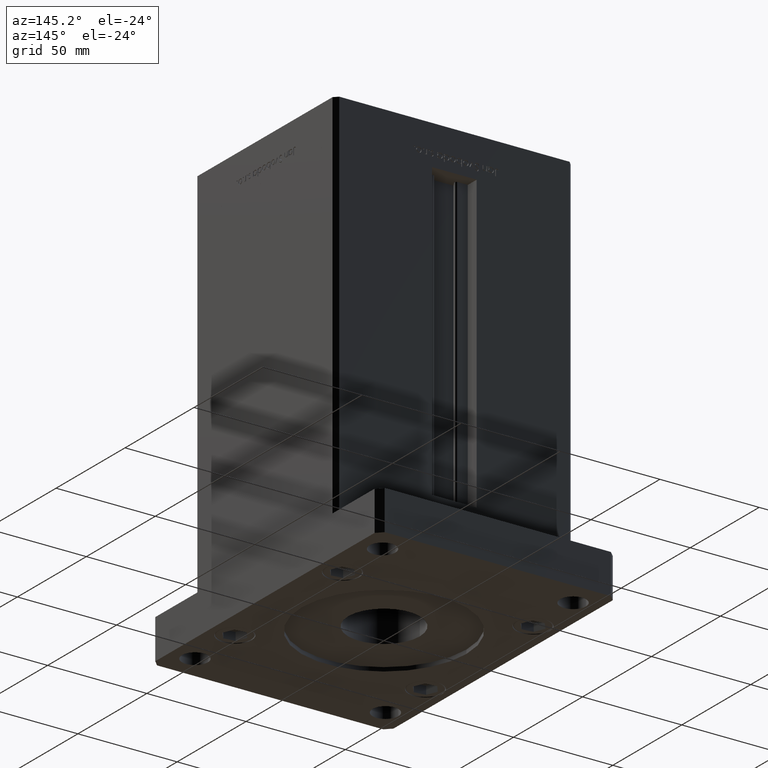
[diagram: clean part render]
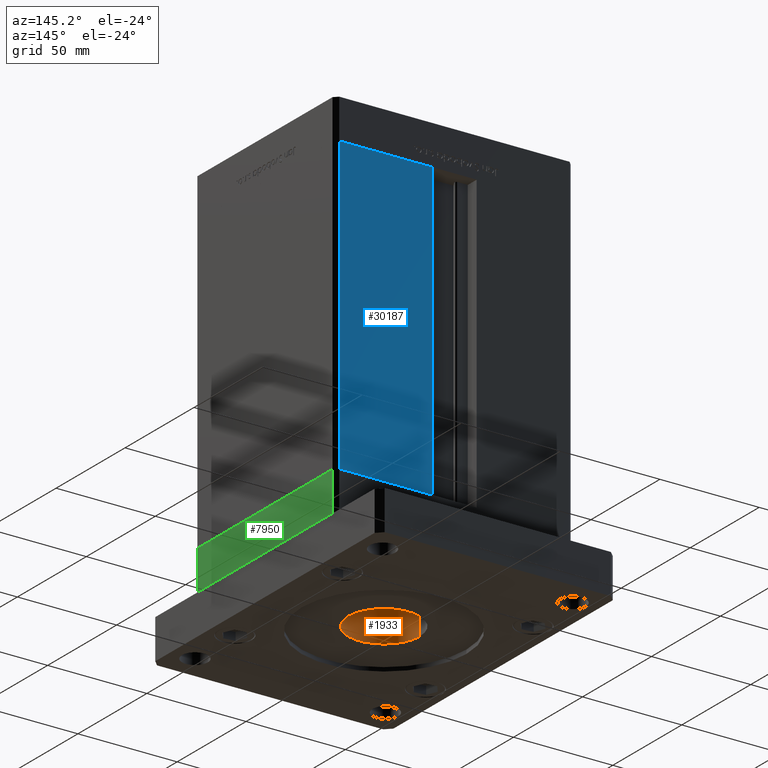
[diagram: same view with three faces highlighted in distinct colors, each labeled with its STEP entity id]
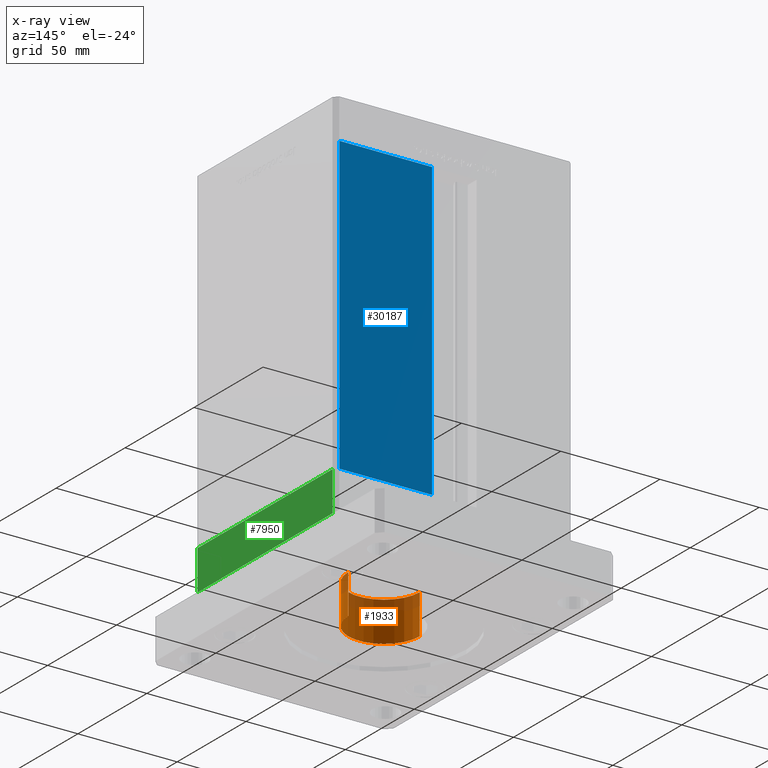
[diagram: x-ray of the same camera — body ghosted, the three highlighted faces saturated]
A machine part, auxiliary view with three faces highlighted in distinct colors.
The next image is the same camera in x-ray (body ghosted, the three faces saturated) — at least one of them is partly hidden behind the body in this view.
Their STEP definitions:

[orange] entity #1933 — the highlighted cylindrical surface (partial cylindrical patch) has radius 18 mm, axis along (0, 0, 1).
#103 = VERTEX_POINT ( 'NONE', #46061 ) ;
#1649 = DIRECTION ( 'NONE',  ( 0.000000000000000000, 0.000000000000000000, 1.000000000000000000 ) ) ;
#1933 = ADVANCED_FACE ( 'NONE', ( #52088 ), #47236, .F. ) ;
#2148 = VERTEX_POINT ( 'NONE', #27243 ) ;
#5960 = LINE ( 'NONE', #9757, #34549 ) ;
#6002 = ORIENTED_EDGE ( 'NONE', *, *, #31103, .F. ) ;
#6555 = LINE ( 'NONE', #40515, #19160 ) ;
#9757 = CARTESIAN_POINT ( 'NONE',  ( -18.00000000000000000, 2.204364238465235428E-15, 0.000000000000000000 ) ) ;
#10323 = CARTESIAN_POINT ( 'NONE',  ( 0.000000000000000000, 0.000000000000000000, 0.000000000000000000 ) ) ;
#13311 = EDGE_LOOP ( 'NONE', ( #38611, #29434, #24119, #6002 ) ) ;
#15169 = DIRECTION ( 'NONE',  ( -0.000000000000000000, -0.000000000000000000, 1.000000000000000000 ) ) ;
#16996 = AXIS2_PLACEMENT_3D ( 'NONE', #10323, #15169, #31884 ) ;
#17719 = DIRECTION ( 'NONE',  ( -1.000000000000000000, 0.000000000000000000, 0.000000000000000000 ) ) ;
#17844 = EDGE_CURVE ( 'NONE', #26815, #103, #5960, .T. ) ;
#19160 = VECTOR ( 'NONE', #43486, 1000.000000000000000 ) ;
#24119 = ORIENTED_EDGE ( 'NONE', *, *, #30260, .T. ) ;
#25011 = CARTESIAN_POINT ( 'NONE',  ( 0.000000000000000000, 0.000000000000000000, 2.000000000000000000 ) ) ;
#26199 = DIRECTION ( 'NONE',  ( -0.000000000000000000, -0.000000000000000000, 1.000000000000000000 ) ) ;
#26731 = DIRECTION ( 'NONE',  ( 1.000000000000000000, 0.000000000000000000, 0.000000000000000000 ) ) ;
#26815 = VERTEX_POINT ( 'NONE', #52301 ) ;
#26926 = CARTESIAN_POINT ( 'NONE',  ( 18.00000000000000000, 0.000000000000000000, 2.000000000000000000 ) ) ;
#27243 = CARTESIAN_POINT ( 'NONE',  ( 18.00000000000000000, 0.000000000000000000, 22.00000000000000000 ) ) ;
#29434 = ORIENTED_EDGE ( 'NONE', *, *, #17844, .T. ) ;
#30260 = EDGE_CURVE ( 'NONE', #103, #2148, #36320, .T. ) ;
#31103 = EDGE_CURVE ( 'NONE', #50978, #2148, #6555, .T. ) ;
#31884 = DIRECTION ( 'NONE',  ( 1.000000000000000000, 0.000000000000000000, 0.000000000000000000 ) ) ;
#34549 = VECTOR ( 'NONE', #26199, 1000.000000000000000 ) ;
#36320 = CIRCLE ( 'NONE', #44927, 18.00000000000000000 ) ;
#38589 = CARTESIAN_POINT ( 'NONE',  ( 0.000000000000000000, 0.000000000000000000, 22.00000000000000000 ) ) ;
#38611 = ORIENTED_EDGE ( 'NONE', *, *, #45445, .F. ) ;
#40515 = CARTESIAN_POINT ( 'NONE',  ( 18.00000000000000000, 0.000000000000000000, 0.000000000000000000 ) ) ;
#41710 = DIRECTION ( 'NONE',  ( -0.000000000000000000, -0.000000000000000000, 1.000000000000000000 ) ) ;
#42682 = AXIS2_PLACEMENT_3D ( 'NONE', #25011, #41710, #17719 ) ;
#43486 = DIRECTION ( 'NONE',  ( -0.000000000000000000, -0.000000000000000000, 1.000000000000000000 ) ) ;
#44927 = AXIS2_PLACEMENT_3D ( 'NONE', #38589, #1649, #26731 ) ;
#45445 = EDGE_CURVE ( 'NONE', #26815, #50978, #52151, .T. ) ;
#46061 = CARTESIAN_POINT ( 'NONE',  ( -18.00000000000000000, 2.204364238465235428E-15, 22.00000000000000000 ) ) ;
#47236 = CYLINDRICAL_SURFACE ( 'NONE', #16996, 18.00000000000000000 ) ;
#50978 = VERTEX_POINT ( 'NONE', #26926 ) ;
#52088 = FACE_OUTER_BOUND ( 'NONE', #13311, .T. ) ;
#52151 = CIRCLE ( 'NONE', #42682, 18.00000000000000000 ) ;
#52301 = CARTESIAN_POINT ( 'NONE',  ( -18.00000000000000000, 2.204364238465235428E-15, 2.000000000000000000 ) ) ;

[blue] entity #30187 — the highlighted planar face has unit normal (-0, -1, 0).
#3081 = CARTESIAN_POINT ( 'NONE',  ( 57.99999999999999289, 51.00000000000000711, 148.5000000000000000 ) ) ;
#3847 = CARTESIAN_POINT ( 'NONE',  ( -11.25000000000000178, 51.00000000000000000, 0.000000000000000000 ) ) ;
#3881 = DIRECTION ( 'NONE',  ( -0.000000000000000000, -0.000000000000000000, -1.000000000000000000 ) ) ;
#4629 = DIRECTION ( 'NONE',  ( 1.000000000000000000, -1.484255380514915423E-16, 0.000000000000000000 ) ) ;
#7300 = VECTOR ( 'NONE', #3881, 1000.000000000000000 ) ;
#8678 = DIRECTION ( 'NONE',  ( -1.484255380514915423E-16, -1.000000000000000000, 0.000000000000000000 ) ) ;
#10504 = VECTOR ( 'NONE', #23230, 1000.000000000000000 ) ;
#14080 = VECTOR ( 'NONE', #26069, 1000.000000000000000 ) ;
#15196 = LINE ( 'NONE', #3847, #30281 ) ;
#16189 = VERTEX_POINT ( 'NONE', #44299 ) ;
#16426 = EDGE_CURVE ( 'NONE', #16189, #31152, #35090, .T. ) ;
#18221 = AXIS2_PLACEMENT_3D ( 'NONE', #49393, #8678, #4629 ) ;
#20564 = PLANE ( 'NONE',  #18221 ) ;
#23230 = DIRECTION ( 'NONE',  ( -0.000000000000000000, -0.000000000000000000, 1.000000000000000000 ) ) ;
#26069 = DIRECTION ( 'NONE',  ( 1.000000000000000000, 0.000000000000000000, 0.000000000000000000 ) ) ;
#26603 = CARTESIAN_POINT ( 'NONE',  ( -11.25000000000000178, 51.00000000000000000, 148.5000000000000000 ) ) ;
#27114 = ORIENTED_EDGE ( 'NONE', *, *, #16426, .T. ) ;
#28842 = VERTEX_POINT ( 'NONE', #47044 ) ;
#29182 = FACE_OUTER_BOUND ( 'NONE', #50677, .T. ) ;
#30061 = EDGE_CURVE ( 'NONE', #28842, #16189, #15196, .T. ) ;
#30187 = ADVANCED_FACE ( 'NONE', ( #29182 ), #20564, .F. ) ;
#30281 = VECTOR ( 'NONE', #47796, 1000.000000000000000 ) ;
#31152 = VERTEX_POINT ( 'NONE', #48333 ) ;
#32608 = VERTEX_POINT ( 'NONE', #39737 ) ;
#33402 = ORIENTED_EDGE ( 'NONE', *, *, #37952, .T. ) ;
#35090 = LINE ( 'NONE', #51523, #10504 ) ;
#35427 = EDGE_CURVE ( 'NONE', #31152, #32608, #42495, .T. ) ;
#37952 = EDGE_CURVE ( 'NONE', #32608, #28842, #48904, .T. ) ;
#39737 = CARTESIAN_POINT ( 'NONE',  ( 57.99999999999999289, 51.00000000000000711, 148.5000000000000000 ) ) ;
#40237 = ORIENTED_EDGE ( 'NONE', *, *, #35427, .T. ) ;
#42495 = LINE ( 'NONE', #26603, #14080 ) ;
#44299 = CARTESIAN_POINT ( 'NONE',  ( 11.25000000000000178, 51.00000000000000000, 0.000000000000000000 ) ) ;
#47044 = CARTESIAN_POINT ( 'NONE',  ( 57.99999999999999289, 51.00000000000000711, 0.000000000000000000 ) ) ;
#47796 = DIRECTION ( 'NONE',  ( -1.000000000000000000, 1.484255380514915423E-16, 0.000000000000000000 ) ) ;
#48333 = CARTESIAN_POINT ( 'NONE',  ( 11.24999999999999467, 51.00000000000000000, 148.5000000000000000 ) ) ;
#48904 = LINE ( 'NONE', #3081, #7300 ) ;
#49393 = CARTESIAN_POINT ( 'NONE',  ( -11.25000000000000178, 51.00000000000000000, 148.5000000000000000 ) ) ;
#50677 = EDGE_LOOP ( 'NONE', ( #52273, #27114, #40237, #33402 ) ) ;
#51523 = CARTESIAN_POINT ( 'NONE',  ( 11.25000000000000178, 51.00000000000000000, 0.000000000000000000 ) ) ;
#52273 = ORIENTED_EDGE ( 'NONE', *, *, #30061, .T. ) ;

[green] entity #7950 — the highlighted planar face has unit normal (1, 0, 0).
#628 = VERTEX_POINT ( 'NONE', #51362 ) ;
#2041 = EDGE_CURVE ( 'NONE', #23794, #628, #4601, .T. ) ;
#3065 = ORIENTED_EDGE ( 'NONE', *, *, #46822, .T. ) ;
#3496 = FACE_OUTER_BOUND ( 'NONE', #37893, .T. ) ;
#4302 = CARTESIAN_POINT ( 'NONE',  ( -60.00000000000000000, 48.99999999999995737, -20.00000000000000000 ) ) ;
#4601 = LINE ( 'NONE', #26168, #25583 ) ;
#4992 = ORIENTED_EDGE ( 'NONE', *, *, #2041, .T. ) ;
#5400 = DIRECTION ( 'NONE',  ( 0.000000000000000000, -1.000000000000000000, 0.000000000000000000 ) ) ;
#5521 = LINE ( 'NONE', #8503, #38411 ) ;
#7078 = VERTEX_POINT ( 'NONE', #48963 ) ;
#7950 = ADVANCED_FACE ( 'NONE', ( #3496 ), #28571, .T. ) ;
#8503 = CARTESIAN_POINT ( 'NONE',  ( -60.00000000000000000, -49.00000000000000000, -20.00000000000000000 ) ) ;
#9953 = ORIENTED_EDGE ( 'NONE', *, *, #10132, .F. ) ;
#10132 = EDGE_CURVE ( 'NONE', #23794, #25543, #12670, .T. ) ;
#12670 = LINE ( 'NONE', #4302, #26702 ) ;
#14335 = EDGE_CURVE ( 'NONE', #25543, #7078, #37227, .T. ) ;
#23794 = VERTEX_POINT ( 'NONE', #26902 ) ;
#24953 = DIRECTION ( 'NONE',  ( 0.000000000000000000, 0.000000000000000000, 1.000000000000000000 ) ) ;
#25077 = VECTOR ( 'NONE', #52603, 1000.000000000000000 ) ;
#25543 = VERTEX_POINT ( 'NONE', #52882 ) ;
#25583 = VECTOR ( 'NONE', #5400, 1000.000000000000000 ) ;
#26168 = CARTESIAN_POINT ( 'NONE',  ( -60.00000000000000000, 48.99999999999995737, -20.00000000000000000 ) ) ;
#26702 = VECTOR ( 'NONE', #37209, 1000.000000000000000 ) ;
#26902 = CARTESIAN_POINT ( 'NONE',  ( -60.00000000000000000, 48.99999999999995737, -20.00000000000000000 ) ) ;
#26985 = ORIENTED_EDGE ( 'NONE', *, *, #14335, .F. ) ;
#28571 = PLANE ( 'NONE',  #41239 ) ;
#37209 = DIRECTION ( 'NONE',  ( 0.000000000000000000, 0.000000000000000000, 1.000000000000000000 ) ) ;
#37227 = LINE ( 'NONE', #52866, #25077 ) ;
#37893 = EDGE_LOOP ( 'NONE', ( #26985, #9953, #4992, #3065 ) ) ;
#38411 = VECTOR ( 'NONE', #24953, 1000.000000000000000 ) ;
#41239 = AXIS2_PLACEMENT_3D ( 'NONE', #52557, #44735, #44997 ) ;
#44735 = DIRECTION ( 'NONE',  ( -1.000000000000000000, 0.000000000000000000, 0.000000000000000000 ) ) ;
#44997 = DIRECTION ( 'NONE',  ( 0.000000000000000000, 0.000000000000000000, 1.000000000000000000 ) ) ;
#46822 = EDGE_CURVE ( 'NONE', #628, #7078, #5521, .T. ) ;
#48963 = CARTESIAN_POINT ( 'NONE',  ( -60.00000000000000000, -49.00000000000000000, 0.000000000000000000 ) ) ;
#51362 = CARTESIAN_POINT ( 'NONE',  ( -60.00000000000000000, -49.00000000000000000, -20.00000000000000000 ) ) ;
#52557 = CARTESIAN_POINT ( 'NONE',  ( -60.00000000000000000, 48.99999999999995737, -20.00000000000000000 ) ) ;
#52603 = DIRECTION ( 'NONE',  ( 0.000000000000000000, -1.000000000000000000, 0.000000000000000000 ) ) ;
#52866 = CARTESIAN_POINT ( 'NONE',  ( -60.00000000000000000, 48.99999999999995737, 0.000000000000000000 ) ) ;
#52882 = CARTESIAN_POINT ( 'NONE',  ( -60.00000000000000000, 48.99999999999995737, 0.000000000000000000 ) ) ;